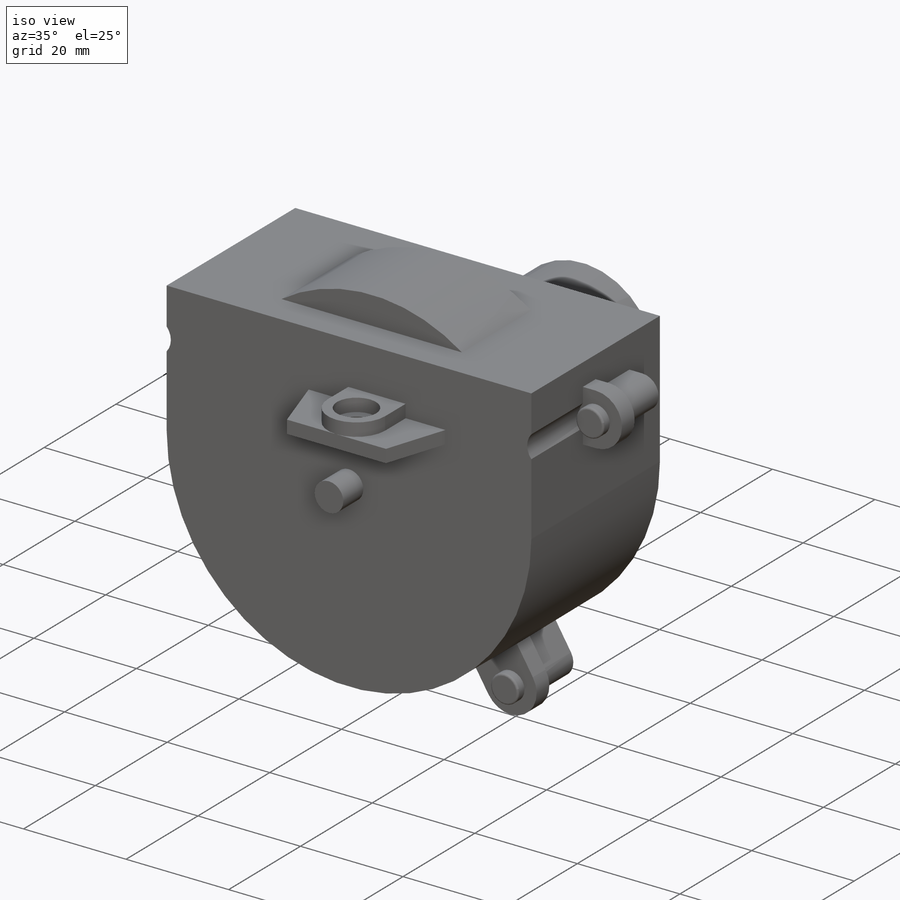
[diagram: iso view]
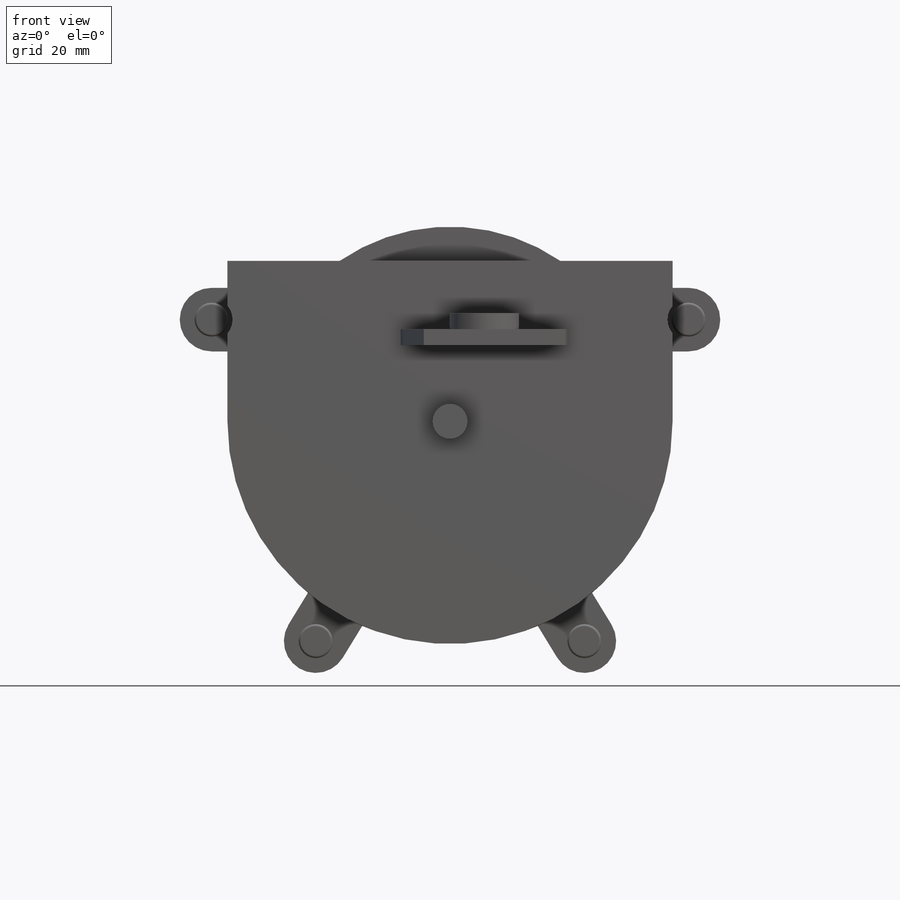
[diagram: front view]
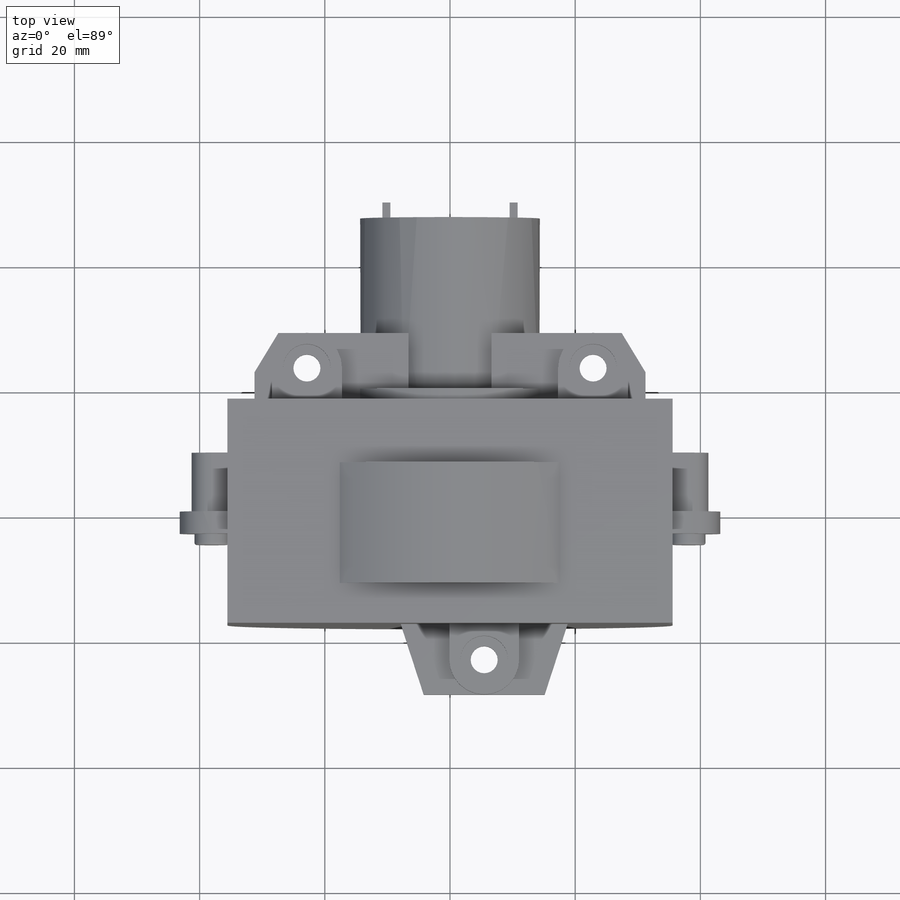
[diagram: top view]
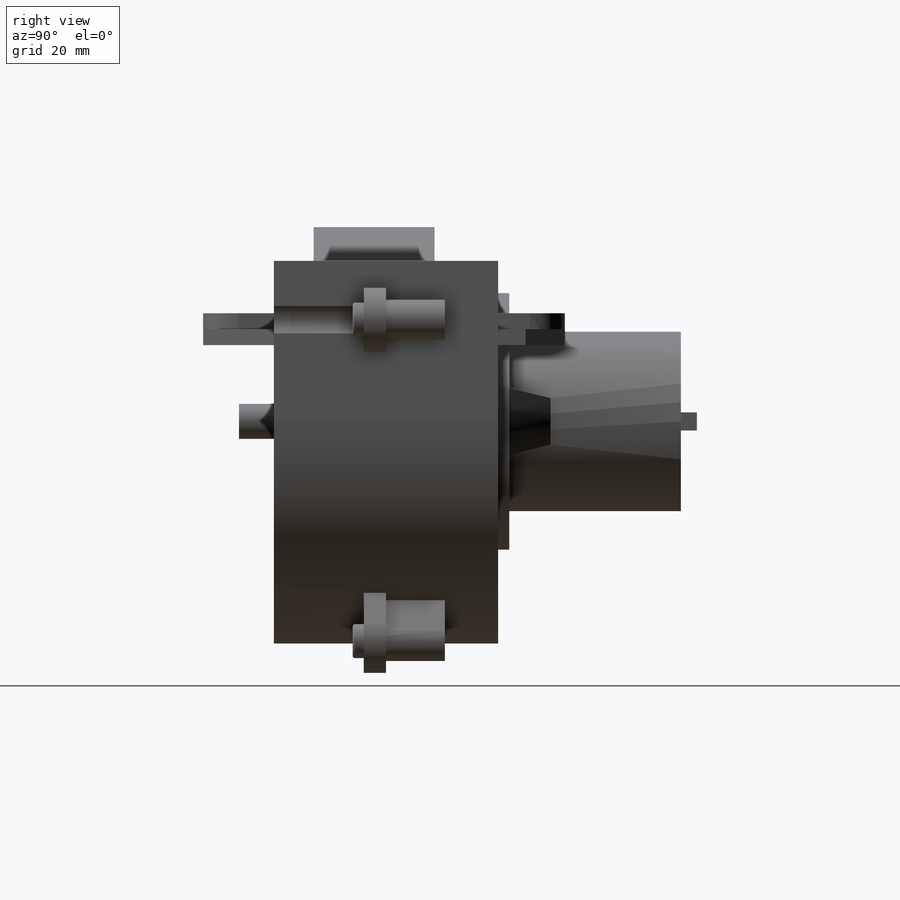
[diagram: right view]
SOLIDWORKS PART (.sldprt)
format: sldprt  version: not decoded by parser v0  size: 820,224 bytes
history: native  units: mm
features: sketch x30, extrude x18, cut_extrude x10, mirror x6, material x1, plane x1, revolve x1, fillet x1 (+11 scaffold rows collapsed)
feature tree (79):
  scaffold x11  (default folders/planes/origin — collapsed)
  material  "Material <not specified>"
  sketch  "Sketch1"  dims[D1=71.12mm D2=25.654mm]
  extrude  "Boss-Extrude1"  Depth=35.814mm
  sketch  "Sketch3"  dims[D1=6.35mm D2=10.16mm]
  extrude  "Boss-Extrude3"  Depth=19.05mm
  sketch  "Sketch2"  dims[D1=62.23mm]
  cut_extrude  "Cut-Extrude2"  [1 undecoded]
  sketch  "Sketch7"  dims[D1=28.702mm]
  extrude  "Boss-Extrude5"  Depth=29.21mm
  sketch  "Sketch8"  dims[D1=41.148mm]
  extrude  "Boss-Extrude6"  Depth=1.778mm
  sketch  "Sketch9"  dims[D1=5.588mm]
  extrude  "Boss-Extrude7"  Depth=5.588mm
  sketch  "Sketch10"  dims[D1=2.54mm D2=26.67mm D3=16.764mm D4=10.922mm]
  extrude  "Boss-Extrude8"  Depth=11.303mm
  sketch  "Sketch11"  dims[D1=19.304mm D2=5.6515mm]
  cut_extrude  "Cut-Extrude3"  [1 undecoded]
  sketch  "Sketch14"
  plane  "Plane1"
  sketch  "Sketch15"  dims[D1=6.604mm]
  revolve  "Revolve1"  Angle=30deg
  mirror  "Mirror4"
  sketch  "Sketch16"  dims[c1.D1=5.6515mm c2.D1=~1.930587deg]
  extrude  "Boss-Extrude11"  Depth=2.54mm
  sketch  "Sketch19"  dims[D1=7.62mm]
  cut_extrude  "Cut-Extrude4"  Depth=2.54mm
  sketch  "Sketch20"  dims[D1=4.318mm]
  cut_extrude  "Cut-Extrude5"  [1 undecoded]
  sketch  "Sketch21"  dims[c1.D1=4.318mm c1.D2=24.638mm c1.D3=10.922mm c1.D4=2.54mm c2.D3=10.922mm]
  extrude  "Boss-Extrude12"  Depth=10.668mm
  sketch  "Sketch22"  dims[c1.D1=5.334mm c1.D2=~3.56121mm c2.D1=20.828mm c2.D2=4.3942mm c2.D3=~7.340073mm]
  cut_extrude  "Cut-Extrude6"  [1 undecoded]
  sketch  "Sketch24"  dims[c1.D1=5.6515mm c2.D1=~1.930587deg c2.D2=2.794mm]
  extrude  "Boss-Extrude13"  Depth=2.54mm
  sketch  "Sketch26"  dims[D1=7.62mm]
  cut_extrude  "Cut-Extrude7"  Depth=2.54mm
  sketch  "Sketch28"  dims[D1=4.318mm]
  cut_extrude  "Cut-Extrude8"  [1 undecoded]
  mirror  "Mirror5"
  sketch  "Sketch30"  dims[c1.D1=5.6515mm c2.D1=~1.930587deg c2.D2=2.794mm]
  extrude  "Boss-Extrude14"  Depth=2.54mm
  sketch  "Sketch32"  dims[D1=7.62mm]
  cut_extrude  "Cut-Extrude9"  Depth=2.54mm
  sketch  "Sketch34"  dims[D1=4.318mm]
  cut_extrude  "Cut-Extrude10"  [1 undecoded]
  sketch  "Sketch35"  dims[D1=2.8956mm D2=1.27mm D3=10.16mm]
  extrude  "Boss-Extrude15"  Depth=2.54mm
  mirror  "Mirror6"
  sketch  "Sketch37"  dims[D1=10.16mm D2=9.398mm D3=38.1mm D4=38.1mm]
  extrude  "Boss-Extrude16"  Depth=3.556mm
  sketch  "Sketch38"  dims[D1=6.35mm]
  extrude  "Boss-Extrude17"  Depth=9.398mm
  mirror  "Mirror7"
  sketch  "Sketch43"  dims[c1.D4=~7.037977mm c1.D3=5.08mm c1.D1=41.148mm c1.D2=41.148mm c2.D3=21.463mm c2.D4=21.463mm c3.D3=21.463mm]
  extrude  "Boss-Extrude20"  Depth=3.556mm
  sketch  "Sketch45"  dims[D1=5.08mm]
  extrude  "Boss-Extrude21"  Depth=9.398mm
  sketch  "Sketch46"  dims[D1=6.7056mm]
  cut_extrude  "Cut-Extrude11"  Depth=14.732mm
  mirror  "Mirror8"
  sketch  "Sketch47"  dims[D1=5.4356mm]
  extrude  "Boss-Extrude22"  Depth=1.778mm
  mirror  "Mirror9"
  sketch  "Sketch48"  dims[D1=5.4356mm]
  extrude  "Boss-Extrude23"  Depth=1.778mm
  sketch  "Sketch49"  dims[D1=5.4356mm]
  extrude  "Boss-Extrude24"  Depth=1.778mm
  fillet  "Fillet2"  Radius=0.381mm
decode coverage: 53 of 66 modeling features carry decoded parameters
note: ~ marks probable driven/reference dimensions
note: 6 parameter values undecoded
summary: no parameter record found for 6 features
note: suppression state not decoded; provenance and decode notes live in map.json
